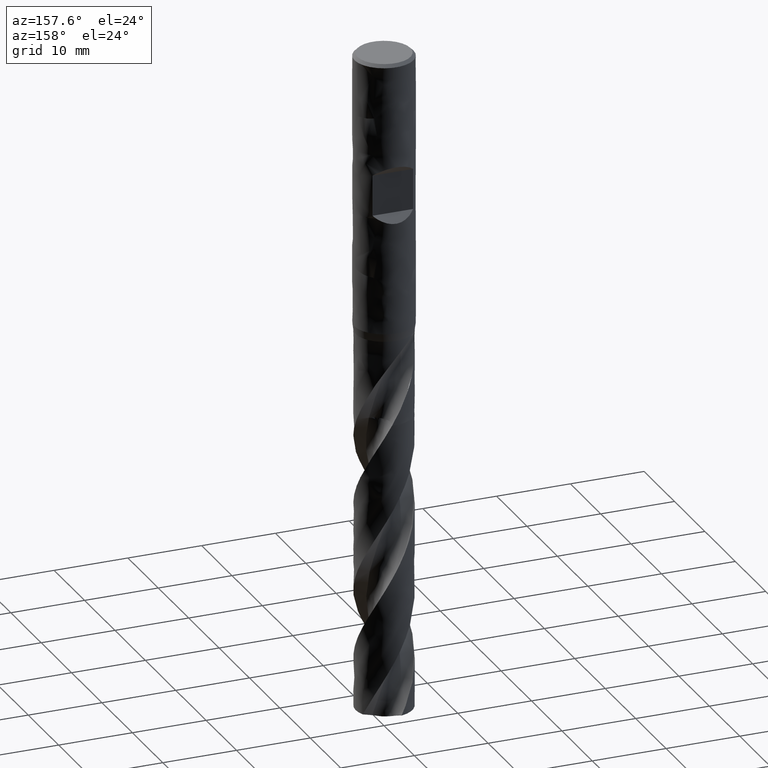
[diagram: clean part render]
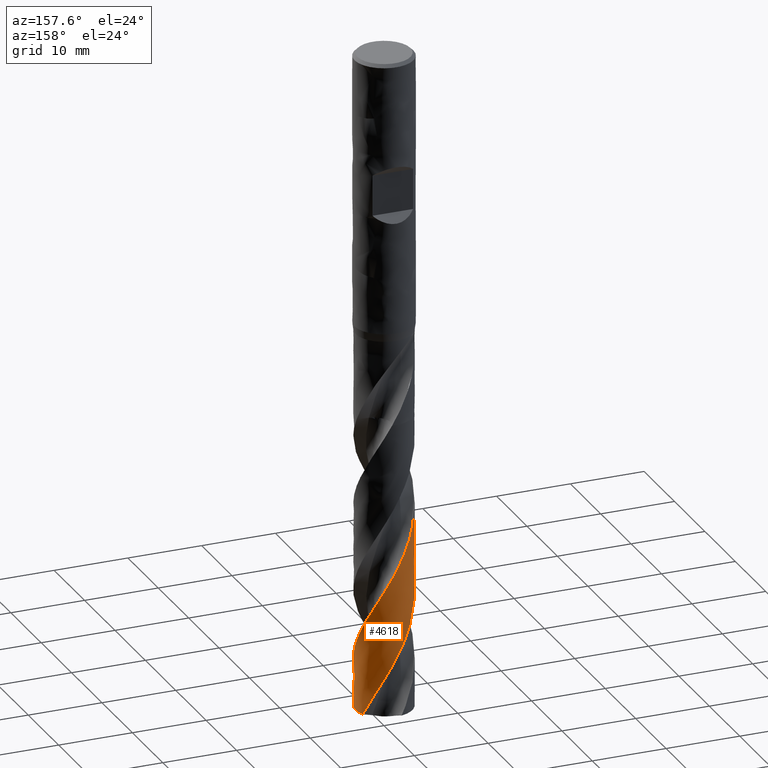
[diagram: same view with one face highlighted and labeled with its STEP entity id]
A machine part, auxiliary view. The second image highlights one B-rep face of the part: STEP entity #4618.
In plain terms, the highlighted face is a freeform B-spline surface patch.
Its self-contained STEP definition (entity closure, byte-faithful):
#3399 = VERTEX_POINT('', #3400);
#3400 = CARTESIAN_POINT('', (-3.85, 4.59519978251764E-15, -71.1953075240469));
#3533 = EDGE_CURVE('', #3534, #3399, #3536, .T.);
#3534 = VERTEX_POINT('', #3535);
#3535 = CARTESIAN_POINT('', (3.51907136437724, 1.56161350289376, -89.5987145980751));
#3536 = B_SPLINE_CURVE_WITH_KNOTS('', 3, (#3537, #3538, #3539, #3540, #3541, #3542, #3543, #3544, #3545, #3546, #3547, #3548, #3549, #3550, #3551, #3552, #3553, #3554, #3555, #3556, #3557, #3558, #3559, #3560, #3561, #3562, #3563, #3564, #3565, #3566, #3567, #3568, #3569, #3570, #3571, #3572, #3573, #3574, #3575, #3576, #3577, #3578, #3579, #3580, #3581, #3582, #3583, #3584, #3585, #3586, #3587, #3588, #3589, #3590, #3591, #3592, #3593, #3594, #3595, #3596, #3597, #3598, #3599, #3600, #3601, #3602, #3603, #3604, #3605, #3606, #3607, #3608, #3609, #3610, #3611, #3612, #3613, #3614, #3615, #3616, #3617, #3618, #3619, #3620, #3621, #3622, #3623, #3624, #3625, #3626, #3627, #3628, #3629, #3630, #3631, #3632, #3633, #3634, #3635, #3636, #3637, #3638, #3639), .UNSPECIFIED., .F., .U., (4, 3, 3, 3, 3, 3, 3, 3, 3, 3, 3, 3, 3, 3, 3, 3, 3, 3, 3, 3, 3, 3, 3, 3, 3, 3, 3, 3, 3, 3, 3, 3, 3, 3, 4), (0., 0.665602783752331, 1.33105200962747, 1.99635009825781, 2.66149894500656, 3.3264997529078, 3.99135304436006, 4.65605865120814, 5.32061617383742, 5.98502477839573, 6.64928299761386, 7.31338866126569, 7.97733882824866, 8.64112996040279, 8.93643438353609, 9.02400325784223, 9.69040696364806, 10.3566345207255, 11.0226919707195, 11.688584550422, 12.3543166319874, 13.019891754164, 13.6853126454655, 14.3505814200161, 15.0156998401673, 15.68066908304, 16.3454897035262, 17.0101615987814, 17.6746840160758, 18.339055857437, 19.0032755371221, 19.6673408363914, 20.3312488235741, 20.9949957717568, 21.1802033371128), .UNSPECIFIED.);
#3537 = CARTESIAN_POINT('', (3.51907136437724, 1.56161350289376, -89.5987145980751));
#3538 = CARTESIAN_POINT('', (3.47459668740755, 1.66183648500421, -89.405834877804));
#3539 = CARTESIAN_POINT('', (3.4258242967458, 1.76018558979073, -89.2129156090377));
#3540 = CARTESIAN_POINT('', (3.3729520419318, 1.85625820478405, -89.0200430945475));
#3541 = CARTESIAN_POINT('', (3.32009198501032, 1.95230865534661, -88.827215076707));
#3542 = CARTESIAN_POINT('', (3.26311096961507, 2.04612547484717, -88.634347313108));
#3543 = CARTESIAN_POINT('', (3.20224001206952, 2.13732517533038, -88.4415265147107));
#3544 = CARTESIAN_POINT('', (3.14138287957396, 2.22850416248051, -88.2487495098939));
#3545 = CARTESIAN_POINT('', (3.07661127767366, 2.31710659390583, -88.055932789267));
#3546 = CARTESIAN_POINT('', (3.00818825163263, 2.40276995210517, -87.8631628475518));
#3547 = CARTESIAN_POINT('', (2.93978057447253, 2.48841409401488, -87.6704361486316));
#3548 = CARTESIAN_POINT('', (2.86769292674638, 2.57115820582576, -87.4776701225102));
#3549 = CARTESIAN_POINT('', (2.79221914420026, 2.65066260598395, -87.2849504599995));
#3550 = CARTESIAN_POINT('', (2.71676215947592, 2.73014931124598, -87.0922736901388));
#3551 = CARTESIAN_POINT('', (2.63788638799563, 2.80643368637912, -86.8995579242574));
#3552 = CARTESIAN_POINT('', (2.55591418555713, 2.87920174285649, -86.7068882626993));
#3553 = CARTESIAN_POINT('', (2.47396016692845, 2.95195365727032, -86.5142613408551));
#3554 = CARTESIAN_POINT('', (2.38887384128594, 3.02122390464162, -86.3215953252634));
#3555 = CARTESIAN_POINT('', (2.30100249927346, 3.08672763591758, -86.1289756957308));
#3556 = CARTESIAN_POINT('', (2.21315067622033, 3.15221681677655, -85.9363988530116));
#3557 = CARTESIAN_POINT('', (2.12247627137458, 3.21397013652901, -85.7437824281423));
#3558 = CARTESIAN_POINT('', (2.02934814176745, 3.27173442068654, -85.5512128175422));
#3559 = CARTESIAN_POINT('', (1.93624075939966, 3.32948583602093, -85.3586861079197));
#3560 = CARTESIAN_POINT('', (1.84064049184648, 3.38327496965334, -85.1661196652527));
#3561 = CARTESIAN_POINT('', (1.74293606666943, 3.43288127780483, -84.9736000453824));
#3562 = CARTESIAN_POINT('', (1.6452535356912, 3.48247646987462, -84.7811235664736));
#3563 = CARTESIAN_POINT('', (1.54542517779776, 3.52791231205519, -84.5886076158051));
#3564 = CARTESIAN_POINT('', (1.44385790913812, 3.56900186862089, -84.3961381555103));
#3565 = CARTESIAN_POINT('', (1.34231362968744, 3.61008212478484, -84.2037122596502));
#3566 = CARTESIAN_POINT('', (1.23898580210998, 3.64683639878798, -84.011247274358));
#3567 = CARTESIAN_POINT('', (1.13429686064137, 3.67911275064237, -83.8188284182696));
#3568 = CARTESIAN_POINT('', (1.02963196235399, 3.71138168981146, -83.626453753682));
#3569 = CARTESIAN_POINT('', (0.923558966225784, 3.73918943368902, -83.434040138585));
#3570 = CARTESIAN_POINT('', (0.816511782076303, 3.76242056523866, -83.2416726469539));
#3571 = CARTESIAN_POINT('', (0.709489662433055, 3.78564625734732, -83.0493501971073));
#3572 = CARTESIAN_POINT('', (0.601445759135559, 3.8043079478053, -82.8569884539263));
#3573 = CARTESIAN_POINT('', (0.492820695029716, 3.81832787520283, -82.6646732733877));
#3574 = CARTESIAN_POINT('', (0.384221649696571, 3.83234444443153, -82.4724041577697));
#3575 = CARTESIAN_POINT('', (0.27499439960344, 3.84172761069208, -82.2800953849351));
#3576 = CARTESIAN_POINT('', (0.165583382565825, 3.84643759125494, -82.0878333889125));
#3577 = CARTESIAN_POINT('', (0.11690909978975, 3.84853294629316, -82.002300734022));
#3578 = CARTESIAN_POINT('', (0.0681916119946929, 3.84970436644683, -81.9167650326302));
#3579 = CARTESIAN_POINT('', (0.0194705254552471, 3.84995076574215, -81.8312337144893));
#3580 = CARTESIAN_POINT('', (0.00502288983244598, 3.85002383240566, -81.8058704599601));
#3581 = CARTESIAN_POINT('', (-0.00942531061377872, 3.85001557255631, -81.7805071624923));
#3582 = CARTESIAN_POINT('', (-0.0238730571498382, 3.84992598333297, -81.755144024123));
#3583 = CARTESIAN_POINT('', (-0.133821162666343, 3.84924420466557, -81.5621292168176));
#3584 = CARTESIAN_POINT('', (-0.243771388868583, 3.84384799098029, -81.3690748478817));
#3585 = CARTESIAN_POINT('', (-0.353270515196743, 3.83375794007563, -81.1760673382504));
#3586 = CARTESIAN_POINT('', (-0.462740697910558, 3.82367055624742, -80.9831108457834));
#3587 = CARTESIAN_POINT('', (-0.571808864021165, 3.8088873566827, -80.7901143593101));
#3588 = CARTESIAN_POINT('', (-0.680026882407083, 3.78946743477284, -80.5971651138317));
#3589 = CARTESIAN_POINT('', (-0.78821726961609, 3.77005247132836, -80.4042651338528));
#3590 = CARTESIAN_POINT('', (-0.895605255333421, 3.74599467082985, -80.2113250185074));
#3591 = CARTESIAN_POINT('', (-1.00174990712963, 3.71739117171786, -80.0184321578323));
#3592 = CARTESIAN_POINT('', (-1.10786828476635, 3.68879475287684, -79.8255870442428));
#3593 = CARTESIAN_POINT('', (-1.21279065411349, 3.65564227115086, -79.6327020235187));
#3594 = CARTESIAN_POINT('', (-1.31608534802736, 3.61806845660882, -79.4398639625761));
#3595 = CARTESIAN_POINT('', (-1.41935514512383, 3.58050369837321, -79.2470723808263));
#3596 = CARTESIAN_POINT('', (-1.52104451632448, 3.53850280006676, -79.0542412404228));
#3597 = CARTESIAN_POINT('', (-1.62073398471945, 3.49223729874925, -78.8614567251571));
#3598 = CARTESIAN_POINT('', (-1.72039994936803, 3.44598270543062, -78.6687176626201));
#3599 = CARTESIAN_POINT('', (-1.81811253167332, 3.39544435705809, -78.4759391899377));
#3600 = CARTESIAN_POINT('', (-1.91346834215456, 3.34082907428266, -78.2832073076897));
#3601 = CARTESIAN_POINT('', (-2.00880205624185, 3.28622644727301, -78.090520086376));
#3602 = CARTESIAN_POINT('', (-2.10182328763947, 3.22752407221556, -77.8977931689273));
#3603 = CARTESIAN_POINT('', (-2.19214895662068, 3.16496176153629, -77.7051132271037));
#3604 = CARTESIAN_POINT('', (-2.28245397694559, 3.10241375274557, -77.5124773323592));
#3605 = CARTESIAN_POINT('', (-2.37010449732899, 3.03598001920009, -77.3198013949165));
#3606 = CARTESIAN_POINT('', (-2.45474030167723, 2.96593156551556, -77.1271726514686));
#3607 = CARTESIAN_POINT('', (-2.53935697786853, 2.89589894316655, -76.9345874431755));
#3608 = CARTESIAN_POINT('', (-2.6209973637583, 2.82222254401696, -76.7419622584057));
#3609 = CARTESIAN_POINT('', (-2.69932558819917, 2.74520333835096, -76.5493841086831));
#3610 = CARTESIAN_POINT('', (-2.77763624465364, 2.66820140707573, -76.3568491516965));
#3611 = CARTESIAN_POINT('', (-2.85267106096942, 2.58782387001087, -76.1642745218735));
#3612 = CARTESIAN_POINT('', (-2.92412049382799, 2.50439999552291, -75.9717465973901));
#3613 = CARTESIAN_POINT('', (-2.99555395754914, 2.42099476649179, -75.7792617034075));
#3614 = CARTESIAN_POINT('', (-3.06343607712358, 2.33450665108171, -75.5867374064263));
#3615 = CARTESIAN_POINT('', (-3.12748616845761, 2.2452906863269, -75.3942596055937));
#3616 = CARTESIAN_POINT('', (-3.19152193131817, 2.15609467983536, -75.2018248634516));
#3617 = CARTESIAN_POINT('', (-3.25175659104871, 2.0641313827627, -75.0093506325052));
#3618 = CARTESIAN_POINT('', (-3.3079412110759, 1.96977789206441, -74.8169231299285));
#3619 = CARTESIAN_POINT('', (-3.36411319575249, 1.87544562050822, -74.6245389023434));
#3620 = CARTESIAN_POINT('', (-3.41626203438393, 1.77868219370382, -74.432114803527));
#3621 = CARTESIAN_POINT('', (-3.46417261484926, 1.67988335741755, -74.2397377607934));
#3622 = CARTESIAN_POINT('', (-3.51207233912649, 1.581106908227, -74.0474043092946));
#3623 = CARTESIAN_POINT('', (-3.55575673656531, 1.48025265508359, -73.8550308814694));
#3624 = CARTESIAN_POINT('', (-3.59504546518838, 1.37773295787991, -73.6627045063816));
#3625 = CARTESIAN_POINT('', (-3.63432519547885, 1.27523674085403, -73.4704221799752));
#3626 = CARTESIAN_POINT('', (-3.66922859358842, 1.17103057159822, -73.2781000878443));
#3627 = CARTESIAN_POINT('', (-3.69961101646746, 1.06554133041975, -73.0858247822532));
#3628 = CARTESIAN_POINT('', (-3.72998637775044, 0.960076607444244, -72.8935941660059));
#3629 = CARTESIAN_POINT('', (-3.75585651494514, 0.853281908619242, -72.7013240882075));
#3630 = CARTESIAN_POINT('', (-3.77711358191221, 0.745595727814058, -72.5091005106845));
#3631 = CARTESIAN_POINT('', (-3.79836561323962, 0.637935057057081, -72.3169224694847));
#3632 = CARTESIAN_POINT('', (-3.81501644763891, 0.529334224807686, -72.1247050668311));
#3633 = CARTESIAN_POINT('', (-3.82699607307171, 0.42023928504394, -71.9325341765401));
#3634 = CARTESIAN_POINT('', (-3.8389727926999, 0.311170807591759, -71.7404098996483));
#3635 = CARTESIAN_POINT('', (-3.8462860014844, 0.201559272052325, -71.5482459844265));
#3636 = CARTESIAN_POINT('', (-3.84890411411323, 0.0918537988512029, -71.3561289185683));
#3637 = CARTESIAN_POINT('', (-3.84963465497242, 0.061242308051226, -71.3025218411598));
#3638 = CARTESIAN_POINT('', (-3.85, 0.0306211052272728, -71.2489140882149));
#3639 = CARTESIAN_POINT('', (-3.85, 4.37030618227452E-15, -71.1953075240469));
#3816 = VERTEX_POINT('', #3817);
#3817 = CARTESIAN_POINT('', (-3.85, 3.86352565080285E-15, -59.2461621504713));
#3863 = EDGE_CURVE('', #3816, #3399, #3864, .T.);
#3864 = LINE('', #3865, #3866);
#3865 = CARTESIAN_POINT('', (-3.85, 3.86352565080285E-15, -59.2461621504713));
#3866 = VECTOR('', #3867, 11.9491453735756);
#3867 = DIRECTION('', (0., 7.31674131714791E-16, -11.9491453735756));
#3891 = VERTEX_POINT('', #3892);
#3892 = CARTESIAN_POINT('', (0.828803960041871, -3.75973190477976, -89.5987145980751));
#4010 = EDGE_CURVE('', #4011, #3891, #4013, .T.);
#4011 = VERTEX_POINT('', #4012);
#4012 = CARTESIAN_POINT('', (1.47860287484347, -3.55474802742819, -88.3941545593001));
#4013 = B_SPLINE_CURVE_WITH_KNOTS('', 3, (#4014, #4015, #4016, #4017, #4018, #4019, #4020), .UNSPECIFIED., .F., .U., (4, 3, 4), (0., 0.664285194453883, 1.38425777289461), .UNSPECIFIED.);
#4014 = CARTESIAN_POINT('', (1.47860287484345, -3.55474802742819, -88.3941545593001));
#4015 = CARTESIAN_POINT('', (1.3778305388002, -3.59666443461896, -88.5868161450001));
#4016 = CARTESIAN_POINT('', (1.27525982576663, -3.63429790548664, -88.7795247006428));
#4017 = CARTESIAN_POINT('', (1.17130495787254, -3.66749842476624, -88.9721944867239));
#4018 = CARTESIAN_POINT('', (1.05863549767073, -3.70348216137646, -89.181015884266));
#4019 = CARTESIAN_POINT('', (0.944291621505796, -3.73427353870968, -89.3898843218203));
#4020 = CARTESIAN_POINT('', (0.828803960041744, -3.75973190477979, -89.5987145980751));
#4413 = EDGE_CURVE('', #3534, #3891, #4414, .T.);
#4414 = CIRCLE('', #4415, 3.85000000000003);
#4415 = AXIS2_PLACEMENT_3D('', #4416, #4417, #4418);
#4416 = CARTESIAN_POINT('', (3.35941371830977E-31, 5.4863389520125E-15, -89.5987145980751));
#4417 = DIRECTION('', (3.74939945665464E-33, 6.12323399573677E-17, -1.));
#4418 = DIRECTION('', (-1., 6.12323399573677E-17, 0.));
#4618 = ADVANCED_FACE('', (#4619), #4794, .T.);
#4619 = FACE_OUTER_BOUND('', #4620, .T.);
#4620 = EDGE_LOOP('', (#4621, #4622, #4623, #4624, #4625));
#4621 = ORIENTED_EDGE('', *, *, #4010, .T.);
#4622 = ORIENTED_EDGE('', *, *, #4413, .F.);
#4623 = ORIENTED_EDGE('', *, *, #3533, .T.);
#4624 = ORIENTED_EDGE('', *, *, #3863, .F.);
#4625 = ORIENTED_EDGE('', *, *, #4626, .F.);
#4626 = EDGE_CURVE('', #4011, #3816, #4627, .T.);
#4627 = B_SPLINE_CURVE_WITH_KNOTS('', 3, (#4628, #4629, #4630, #4631, #4632, #4633, #4634, #4635, #4636, #4637, #4638, #4639, #4640, #4641, #4642, #4643, #4644, #4645, #4646, #4647, #4648, #4649, #4650, #4651, #4652, #4653, #4654, #4655, #4656, #4657, #4658, #4659, #4660, #4661, #4662, #4663, #4664, #4665, #4666, #4667, #4668, #4669, #4670, #4671, #4672, #4673, #4674, #4675, #4676, #4677, #4678, #4679, #4680, #4681, #4682, #4683, #4684, #4685, #4686, #4687, #4688, #4689, #4690, #4691, #4692, #4693, #4694, #4695, #4696, #4697, #4698, #4699, #4700, #4701, #4702, #4703, #4704, #4705, #4706, #4707, #4708, #4709, #4710, #4711, #4712, #4713, #4714, #4715, #4716, #4717, #4718, #4719, #4720, #4721, #4722, #4723, #4724, #4725, #4726, #4727, #4728, #4729, #4730, #4731, #4732, #4733, #4734, #4735, #4736, #4737, #4738, #4739, #4740, #4741, #4742, #4743, #4744, #4745, #4746, #4747, #4748, #4749, #4750, #4751, #4752, #4753, #4754, #4755, #4756, #4757, #4758, #4759, #4760, #4761, #4762, #4763, #4764, #4765, #4766, #4767, #4768, #4769, #4770, #4771, #4772, #4773, #4774, #4775, #4776, #4777, #4778, #4779, #4780, #4781, #4782, #4783, #4784, #4785, #4786, #4787, #4788, #4789, #4790, #4791, #4792, #4793), .UNSPECIFIED., .F., .U., (4, 3, 3, 3, 3, 3, 3, 3, 3, 3, 3, 3, 3, 3, 3, 3, 3, 3, 3, 3, 3, 3, 3, 3, 3, 3, 3, 3, 3, 3, 3, 3, 3, 3, 3, 3, 3, 3, 3, 3, 3, 3, 3, 3, 3, 3, 3, 3, 3, 3, 3, 3, 3, 3, 3, 4), (0., 0.665641461947037, 1.33113048221583, 1.99646951843761, 2.66166031629168, 3.32670388690044, 3.99160079310022, 4.65635134929452, 5.32095529000937, 5.98541171299998, 6.64971902186621, 7.31387494872326, 7.9778769441644, 8.64172188385066, 9.08449146954411, 9.17204559330393, 9.25964393953625, 9.92603327055057, 10.5922480202836, 11.2582940278853, 11.9241763429505, 12.5898991732132, 13.2554659120441, 13.9208791577456, 14.5861408947981, 15.2512527502647, 15.9162157773269, 16.5810304162151, 17.2456964561731, 17.9102130367771, 18.5745789395789, 19.2387924601733, 19.9028512631304, 20.5667522993423, 21.2304917198215, 21.3618042631243, 21.4201858508563, 22.0866030417236, 22.7528426035473, 23.4189105761246, 24.0848121176589, 24.7505515406445, 25.4161323419726, 26.0815572355152, 26.7468283701244, 27.4119473869287, 28.0769153500732, 28.7417327176689, 29.4063993057822, 30.070914334159, 30.7352765864395, 31.3994843007694, 32.0635350917624, 32.7274258660006, 33.3911527499827, 33.5535048454686), .UNSPECIFIED.);
#4628 = CARTESIAN_POINT('', (1.47860287484347, -3.55474802742819, -88.3941545593001));
#4629 = CARTESIAN_POINT('', (1.57958095722087, -3.51274603973529, -88.2010996174812));
#4630 = CARTESIAN_POINT('', (1.67879947099112, -3.46642438140222, -88.0080079166092));
#4631 = CARTESIAN_POINT('', (1.77585523480812, -3.41596811826524, -87.8149657065317));
#4632 = CARTESIAN_POINT('', (1.87288877142869, -3.36552341035412, -87.6219677059576));
#4633 = CARTESIAN_POINT('', (1.96780221778856, -3.31092426549125, -87.4289334210228));
#4634 = CARTESIAN_POINT('', (2.06020804806322, -3.25239032077878, -87.2359480747952));
#4635 = CARTESIAN_POINT('', (2.152593052449, -3.19386956810653, -87.0430062224832));
#4636 = CARTESIAN_POINT('', (2.24251291043285, -3.13138953431739, -86.8500286399355));
#4637 = CARTESIAN_POINT('', (2.32959865297226, -3.0652031117154, -86.6570994902152));
#4638 = CARTESIAN_POINT('', (2.41666499269955, -2.99903143553098, -86.4642133253502));
#4639 = CARTESIAN_POINT('', (2.50093833571638, -2.92912472636164, -86.271291526059));
#4640 = CARTESIAN_POINT('', (2.58207257366544, -2.85576631122448, -86.0784182795994));
#4641 = CARTESIAN_POINT('', (2.66318885410458, -2.78242413256777, -85.8855877219397));
#4642 = CARTESIAN_POINT('', (2.7412036279824, -2.70559912348325, -85.6927208909464));
#4643 = CARTESIAN_POINT('', (2.81579786842344, -2.62560133382469, -85.4999033527593));
#4644 = CARTESIAN_POINT('', (2.89037565833301, -2.5456211863614, -85.3071283373053));
#4645 = CARTESIAN_POINT('', (2.96156617837198, -2.46243565632, -85.1143165028041));
#4646 = CARTESIAN_POINT('', (3.02907894151158, -2.37637976049517, -84.9215542478723));
#4647 = CARTESIAN_POINT('', (3.09657684446283, -2.290342806375, -84.7288344217093));
#4648 = CARTESIAN_POINT('', (3.16042724255755, -2.20140019711427, -84.5360779925355));
#4649 = CARTESIAN_POINT('', (3.22036863877265, -2.10991133235726, -84.3433707731101));
#4650 = CARTESIAN_POINT('', (3.28029681448501, -2.01844264612231, -84.1507060566373));
#4651 = CARTESIAN_POINT('', (3.33634401531172, -1.92438856987604, -83.9580052897491));
#4652 = CARTESIAN_POINT('', (3.38827926867612, -1.82813117621783, -83.7653531592045));
#4653 = CARTESIAN_POINT('', (3.44020299431714, -1.73189514817422, -83.5727437903741));
#4654 = CARTESIAN_POINT('', (3.48804020988825, -1.63341294205774, -83.3800987485899));
#4655 = CARTESIAN_POINT('', (3.53159279317889, -1.53308588903784, -83.1875020968528));
#4656 = CARTESIAN_POINT('', (3.57513560260763, -1.43278135093411, -82.9949486667328));
#4657 = CARTESIAN_POINT('', (3.61441552967453, -1.33058721867288, -82.8023592481126));
#4658 = CARTESIAN_POINT('', (3.64926983218349, -1.22691877967352, -82.6098187785479));
#4659 = CARTESIAN_POINT('', (3.68411619211186, -1.12327396458493, -82.4173221850069));
#4660 = CARTESIAN_POINT('', (3.7145541280312, -1.01811054027576, -82.2247888774439));
#4661 = CARTESIAN_POINT('', (3.74045750233991, -0.911853975803877, -82.0323050788374));
#4662 = CARTESIAN_POINT('', (3.76635487302369, -0.805622038415419, -81.8398658922));
#4663 = CARTESIAN_POINT('', (3.78773075716789, -0.698252430638733, -81.6473899033705));
#4664 = CARTESIAN_POINT('', (3.80449572716399, -0.590179855630103, -81.4549633116651));
#4665 = CARTESIAN_POINT('', (3.82125673175781, -0.482132842923947, -81.2625822344368));
#4666 = CARTESIAN_POINT('', (3.83341621007497, -0.373336394666758, -81.0701647976521));
#4667 = CARTESIAN_POINT('', (3.84092188980571, -0.264232920758435, -80.8777962351006));
#4668 = CARTESIAN_POINT('', (3.845928008714, -0.191463367129036, -80.749490747404));
#4669 = CARTESIAN_POINT('', (3.84886612693463, -0.118538949143679, -80.6211756596508));
#4670 = CARTESIAN_POINT('', (3.84973003380281, -0.0455923988914628, -80.4928759254101));
#4671 = CARTESIAN_POINT('', (3.84990086443639, -0.0311678053895593, -80.467505685057));
#4672 = CARTESIAN_POINT('', (3.84999062506022, -0.0167420172734204, -80.4421354484707));
#4673 = CARTESIAN_POINT('', (3.84999930335657, -0.00231606431933788, -80.4167654074296));
#4674 = CARTESIAN_POINT('', (3.85000798603622, 0.0121171749998006, -80.391382552304));
#4675 = CARTESIAN_POINT('', (3.8499355046052, 0.0265506950277285, -80.3659996992589));
#4676 = CARTESIAN_POINT('', (3.84978185797307, 0.0409834847398418, -80.3406170520211));
#4677 = CARTESIAN_POINT('', (3.84861301768324, 0.150778446569574, -80.1475229350694));
#4678 = CARTESIAN_POINT('', (3.84274250600807, 0.260559675404836, -79.9543923602066));
#4679 = CARTESIAN_POINT('', (3.83219153760537, 0.369875680609079, -79.76131122207));
#4680 = CARTESIAN_POINT('', (3.82164333335494, 0.479163047107132, -79.568280667505));
#4681 = CARTESIAN_POINT('', (3.80641252462372, 0.588033720008872, -79.3752129616913));
#4682 = CARTESIAN_POINT('', (3.78655853930875, 0.696041973151103, -79.1821952821774));
#4683 = CARTESIAN_POINT('', (3.76670958270832, 0.804022869434546, -78.9892264911258));
#4684 = CARTESIAN_POINT('', (3.74223127376171, 0.911188147065709, -78.7962203559923));
#4685 = CARTESIAN_POINT('', (3.71322087930152, 1.01709916012125, -78.6032642374392));
#4686 = CARTESIAN_POINT('', (3.68421761465668, 1.12298414368006, -78.4103555412506));
#4687 = CARTESIAN_POINT('', (3.65067181655543, 1.22766158171435, -78.2174098664993));
#4688 = CARTESIAN_POINT('', (3.61271833616997, 1.33070140283286, -78.0245137474118));
#4689 = CARTESIAN_POINT('', (3.57477394598436, 1.43371654498761, -77.8316638286795));
#4690 = CARTESIAN_POINT('', (3.53240681508023, 1.53514131332321, -77.6387774382982));
#4691 = CARTESIAN_POINT('', (3.48578870373164, 1.63455716111029, -77.4459401278061));
#4692 = CARTESIAN_POINT('', (3.43918152288959, 1.73394969895316, -77.2531480317043));
#4693 = CARTESIAN_POINT('', (3.38830383291655, 1.83138012749072, -77.0603196245738));
#4694 = CARTESIAN_POINT('', (3.33336260737289, 1.92644587979217, -76.8675403137561));
#4695 = CARTESIAN_POINT('', (3.27843405238524, 2.02148970801154, -76.6748054617402));
#4696 = CARTESIAN_POINT('', (3.21941897309003, 2.11421307623274, -76.4820337957708));
#4697 = CARTESIAN_POINT('', (3.15655687967553, 2.20423425827953, -76.2893118649698));
#4698 = CARTESIAN_POINT('', (3.09370909939788, 2.29423494330771, -76.09663381523));
#4699 = CARTESIAN_POINT('', (3.02698875755548, 2.38157383335633, -75.9039184119782));
#4700 = CARTESIAN_POINT('', (2.95666622577125, 2.46589229882078, -75.7112530659814));
#4701 = CARTESIAN_POINT('', (2.88635953745432, 2.55019176757369, -75.5186311269416));
#4702 = CARTESIAN_POINT('', (2.81242188358881, 2.63150858224594, -75.3259719666453));
#4703 = CARTESIAN_POINT('', (2.73515379592839, 2.70950802040122, -75.1333625885497));
#4704 = CARTESIAN_POINT('', (2.65790299812095, 2.78749000505326, -74.9407963095904));
#4705 = CARTESIAN_POINT('', (2.57728889470185, 2.86219070906833, -74.7481932831621));
#4706 = CARTESIAN_POINT('', (2.49364078224641, 2.93330115213518, -74.5556395357202));
#4707 = CARTESIAN_POINT('', (2.41001133607789, 3.0043957267276, -74.363128757132));
#4708 = CARTESIAN_POINT('', (2.3233108600676, 3.07193421725266, -74.1705816044686));
#4709 = CARTESIAN_POINT('', (2.23389472407751, 3.13563619728736, -73.9780834615169));
#4710 = CARTESIAN_POINT('', (2.14449857432325, 3.19932393869742, -73.7856283456235));
#4711 = CARTESIAN_POINT('', (2.05234688768496, 3.25920619212394, -73.5931366476869));
#4712 = CARTESIAN_POINT('', (1.95781672639524, 3.31503448939028, -73.4006943928122));
#4713 = CARTESIAN_POINT('', (1.86330782152, 3.37085023289166, -73.2082954112408));
#4714 = CARTESIAN_POINT('', (1.76637967400765, 3.42263861429979, -73.015859209264));
#4715 = CARTESIAN_POINT('', (1.66742740388153, 3.47018527643481, -72.8234729790141));
#4716 = CARTESIAN_POINT('', (1.56849757098425, 3.51772115745953, -72.6311303719561));
#4717 = CARTESIAN_POINT('', (1.46750174220709, 3.5610378044566, -72.4387504036449));
#4718 = CARTESIAN_POINT('', (1.364851753586, 3.59995551232697, -72.2464203691678));
#4719 = CARTESIAN_POINT('', (1.26222530926751, 3.63886429384184, -72.0541344484466));
#4720 = CARTESIAN_POINT('', (1.15790038642461, 3.67339319705483, -71.861811523634));
#4721 = CARTESIAN_POINT('', (1.05230398374557, 3.70339794321288, -71.6695380969487));
#4722 = CARTESIAN_POINT('', (0.946732178015306, 3.73339570025781, -71.4773094572023));
#4723 = CARTESIAN_POINT('', (0.839841586517492, 3.75888496775618, -71.2850442725972));
#4724 = CARTESIAN_POINT('', (0.732071446630078, 3.7797581135609, -71.092828169566));
#4725 = CARTESIAN_POINT('', (0.624326910716469, 3.80062630033448, -70.9006577331366));
#4726 = CARTESIAN_POINT('', (0.51565348436383, 3.8168901922418, -70.7084508401022));
#4727 = CARTESIAN_POINT('', (0.406497948577384, 3.82848004014692, -70.5162931254284));
#4728 = CARTESIAN_POINT('', (0.297368984901739, 3.84006706669514, -70.3241821883739));
#4729 = CARTESIAN_POINT('', (0.187708790906404, 3.84698761605745, -70.1320342844884));
#4730 = CARTESIAN_POINT('', (0.0779665145819927, 3.8492104674343, -69.9399361487556));
#4731 = CARTESIAN_POINT('', (0.0562553777000115, 3.84965023077918, -69.9019319350709));
#4732 = CARTESIAN_POINT('', (0.0345399078414781, 3.84990631014638, -69.8639276270995));
#4733 = CARTESIAN_POINT('', (0.0128236257811886, 3.84997864339815, -69.8259238776046));
#4734 = CARTESIAN_POINT('', (0.0031685616538174, 3.85001080277895, -69.8090274016132));
#4735 = CARTESIAN_POINT('', (-0.00648671712259507, 3.85000664244113, -69.7921309401111));
#4736 = CARTESIAN_POINT('', (-0.0161419074896734, 3.84996616073734, -69.7752345541466));
#4737 = CARTESIAN_POINT('', (-0.126354477782414, 3.84950406807481, -69.5823648068898));
#4738 = CARTESIAN_POINT('', (-0.236583454278696, 3.84430491492075, -69.3894577456815));
#4739 = CARTESIAN_POINT('', (-0.346372574078876, 3.83438730958757, -69.196600923492));
#4740 = CARTESIAN_POINT('', (-0.456132430323697, 3.82447234772575, -69.0037955059983));
#4741 = CARTESIAN_POINT('', (-0.565501356706254, 3.80983709154731, -68.8109522375687));
#4742 = CARTESIAN_POINT('', (-0.674028007498605, 3.79053904413444, -68.6181595692423));
#4743 = CARTESIAN_POINT('', (-0.782526707374671, 3.77124596691187, -68.4254165544499));
#4744 = CARTESIAN_POINT('', (-0.890231157812963, 3.74728402144707, -68.2326357348236));
#4745 = CARTESIAN_POINT('', (-0.996696282021189, 3.71874932220568, -68.0399053305763));
#4746 = CARTESIAN_POINT('', (-1.10313480368675, 3.69022175295695, -67.8472230840599));
#4747 = CARTESIAN_POINT('', (-1.2083823043075, 3.657110885804, -67.6545034375118));
#4748 = CARTESIAN_POINT('', (-1.31200222037243, 3.61955110113642, -67.4618337595793));
#4749 = CARTESIAN_POINT('', (-1.41559690941899, 3.5820004606702, -67.269210988474));
#4750 = CARTESIAN_POINT('', (-1.51761259401323, 3.53998570556293, -67.0765512002805));
#4751 = CARTESIAN_POINT('', (-1.61762475754974, 3.4936785976621, -66.883941073213));
#4752 = CARTESIAN_POINT('', (-1.71761309180018, 3.44738252307243, -66.6913768381816));
#4753 = CARTESIAN_POINT('', (-1.81564536977186, 3.39677462207333, -66.4987754993869));
#4754 = CARTESIAN_POINT('', (-1.91131396202697, 3.34206207880117, -66.3062241135532));
#4755 = CARTESIAN_POINT('', (-2.00696014456365, 3.28736235157094, -66.1137178315749));
#4756 = CARTESIAN_POINT('', (-2.10028698782108, 3.22853523327988, -65.9211738880371));
#4757 = CARTESIAN_POINT('', (-2.19090774465022, 3.1658211027207, -65.7286804147609));
#4758 = CARTESIAN_POINT('', (-2.28150756184959, 3.10312146344057, -65.536231420721));
#4759 = CARTESIAN_POINT('', (-2.36944243838836, 3.03650901007612, -65.3437445411305));
#4760 = CARTESIAN_POINT('', (-2.45434809297602, 2.96625613164221, -65.1513081884313));
#4761 = CARTESIAN_POINT('', (-2.53923433343141, 2.89601931690489, -64.958915837334));
#4762 = CARTESIAN_POINT('', (-2.62113039191731, 2.82211253925116, -64.7664858683454));
#4763 = CARTESIAN_POINT('', (-2.69969590765413, 2.74483915852925, -64.5741060744671));
#4764 = CARTESIAN_POINT('', (-2.77824358055624, 2.66758332718823, -64.3817699715241));
#4765 = CARTESIAN_POINT('', (-2.85349804033383, 2.58692712932342, -64.1893966762776));
#4766 = CARTESIAN_POINT('', (-2.92514520980497, 2.5032030484072, -63.99707315127));
#4767 = CARTESIAN_POINT('', (-2.99677615331425, 2.41949792851558, -63.8047931818446));
#4768 = CARTESIAN_POINT('', (-3.06483479139268, 2.3326873202612, -63.612476190596));
#4769 = CARTESIAN_POINT('', (-3.12903648717645, 2.24312965784827, -63.4202089464593));
#4770 = CARTESIAN_POINT('', (-3.1932236221215, 2.15359230696546, -63.2279853082164));
#4771 = CARTESIAN_POINT('', (-3.25358513830612, 2.06126796317372, -63.03572426176));
#4772 = CARTESIAN_POINT('', (-3.30986902852393, 1.9665368071862, -62.8435134806312));
#4773 = CARTESIAN_POINT('', (-3.36614008468068, 1.87182725214763, -62.6513465281165));
#4774 = CARTESIAN_POINT('', (-3.41836044369776, 1.77466985243317, -62.4591417089645));
#4775 = CARTESIAN_POINT('', (-3.46631228491689, 1.67546385918476, -62.2669874453045));
#4776 = CARTESIAN_POINT('', (-3.51425310171249, 1.57628067400499, -62.0748773590929));
#4777 = CARTESIAN_POINT('', (-3.55794853995017, 1.47500598089862, -61.8827294971461));
#4778 = CARTESIAN_POINT('', (-3.59721564143502, 1.37205671494123, -61.6906319835195));
#4779 = CARTESIAN_POINT('', (-3.63647360896115, 1.26913139611286, -61.4985791538827));
#4780 = CARTESIAN_POINT('', (-3.67132299295482, 1.16448577086628, -61.3064889386377));
#4781 = CARTESIAN_POINT('', (-3.70161682941229, 1.05855224160733, -61.1144486577247));
#4782 = CARTESIAN_POINT('', (-3.7319035087564, 0.952643739824806, -60.922453747561));
#4783 = CARTESIAN_POINT('', (-3.75765080179033, 0.845398840181996, -60.7304217713972));
#4784 = CARTESIAN_POINT('', (-3.77874912627389, 0.737261853539669, -60.538439501257));
#4785 = CARTESIAN_POINT('', (-3.79984236668036, 0.62915092473797, -60.3465034932104));
#4786 = CARTESIAN_POINT('', (-3.81629870254633, 0.520098103384311, -60.1545302528781));
#4787 = CARTESIAN_POINT('', (-3.82804715118644, 0.41055451318228, -59.9626070789197));
#4788 = CARTESIAN_POINT('', (-3.83979269956595, 0.301037965270548, -59.7707312837461));
#4789 = CARTESIAN_POINT('', (-3.84683802434648, 0.190981509556443, -59.5788177370535));
#4790 = CARTESIAN_POINT('', (-3.84915121235395, 0.0808390031850693, -59.3869546858992));
#4791 = CARTESIAN_POINT('', (-3.84971703382259, 0.0538973994275471, -59.3400236828723));
#4792 = CARTESIAN_POINT('', (-3.85, 0.0269488255114934, -59.2930924180565));
#4793 = CARTESIAN_POINT('', (-3.85, 2.09410770530651E-15, -59.2461621504713));
#4794 = (
   BOUNDED_SURFACE ()
   B_SPLINE_SURFACE (2, 1, ((#4795, #4796), (#4797, #4798), (#4799, #4800), (#4801, #4802), (#4803, #4804), (#4805, #4806), (#4807, #4808)), .UNSPECIFIED., .F., .F., .U.)
   B_SPLINE_SURFACE_WITH_KNOTS ((3, 2, 2, 3), (2, 2), (0., 6.04756585816035, 12.0951317163207, 17.2514166809163), (0.411757585745437, 1.), .UNSPECIFIED.)
   GEOMETRIC_REPRESENTATION_ITEM ()
   RATIONAL_B_SPLINE_SURFACE (((1., 1.), (0.707106781186548, 0.707106781186548), (1., 1.), (0.707106781186548, 0.707106781186548), (1., 1.), (0.750272930329158, 0.750272930329158), (0.926391222179682, 0.926391222179682)))
   REPRESENTATION_ITEM ('')
   SURFACE ()
);
#4795 = CARTESIAN_POINT('', (-3.85, 3.86352565080285E-15, -59.2461621504713));
#4796 = CARTESIAN_POINT('', (-3.85, 5.72208346084836E-15, -89.5987145980751));
#4797 = CARTESIAN_POINT('', (-3.85, 3.85, -59.2461621504712));
#4798 = CARTESIAN_POINT('', (-3.85, 3.85, -89.5987145980751));
#4799 = CARTESIAN_POINT('', (1.97215226305253E-31, 3.85, -59.2461621504713));
#4800 = CARTESIAN_POINT('', (3.45126646034193E-31, 3.85000000000001, -89.5987145980751));
#4801 = CARTESIAN_POINT('', (3.85, 3.85, -59.2461621504712));
#4802 = CARTESIAN_POINT('', (3.85, 3.85, -89.5987145980751));
#4803 = CARTESIAN_POINT('', (3.85, 3.86352565080285E-15, -59.2461621504713));
#4804 = CARTESIAN_POINT('', (3.85, 5.72208346084836E-15, -89.5987145980751));
#4805 = CARTESIAN_POINT('', (3.85, -3.09373249168428, -59.2461621504713));
#4806 = CARTESIAN_POINT('', (3.85, -3.09373249168427, -89.5987145980751));
#4807 = CARTESIAN_POINT('', (0.828803960041745, -3.75973190477979, -59.2461621504713));
#4808 = CARTESIAN_POINT('', (0.828803960041745, -3.75973190477979, -89.5987145980751));